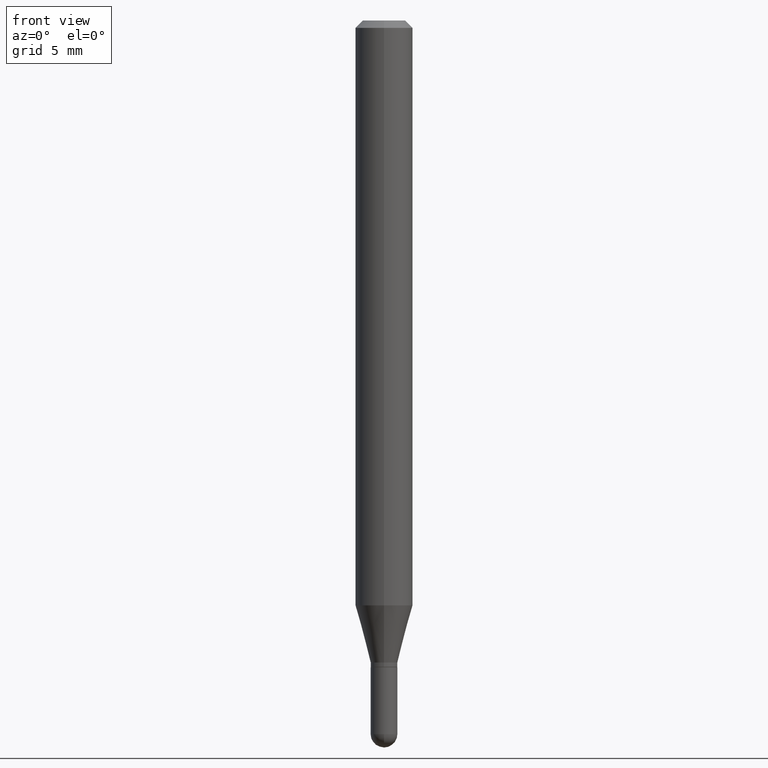
[diagram: clean part render]
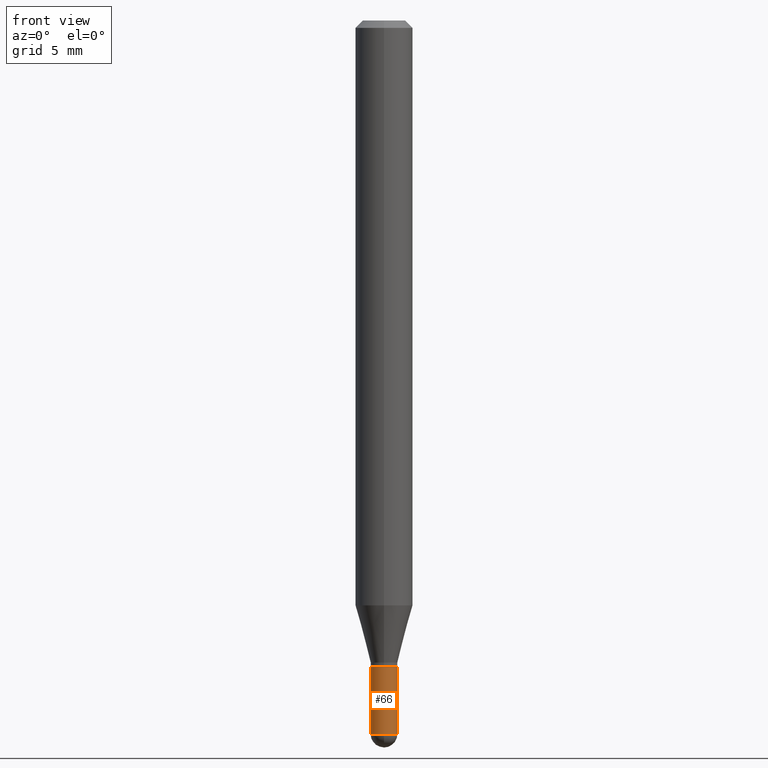
[diagram: same view with one face highlighted and labeled with its STEP entity id]
A machine part, front view. The second image highlights one B-rep face of the part: STEP entity #66.
In plain terms, the highlighted cylindrical surface (edge-blend (fillet) strip) has radius 0.6998 mm, axis along (-0, 0, 1).
Its self-contained STEP definition (entity closure, byte-faithful):
#3 = DIRECTION ( 'NONE',  ( -2.445468806185136597E-29, 3.491481338843145583E-15, 1.000000000000000000 ) ) ;
#6 = FACE_OUTER_BOUND ( 'NONE', #452, .T. ) ;
#11 = DIRECTION ( 'NONE',  ( -2.445468806185136597E-29, 3.491481338843145583E-15, 1.000000000000000000 ) ) ;
#12 = ORIENTED_EDGE ( 'NONE', *, *, #68, .F. ) ;
#15 = VERTEX_POINT ( 'NONE', #325 ) ;
#44 = DIRECTION ( 'NONE',  ( 1.000000000000000000, -6.982962677686254878E-15, 0.000000000000000000 ) ) ;
#57 = VECTOR ( 'NONE', #207, 39.37007874015748143 ) ;
#66 = ADVANCED_FACE ( 'NONE', ( #6 ), #195, .T. ) ;
#68 = EDGE_CURVE ( 'NONE', #125, #299, #323, .T. ) ;
#73 = AXIS2_PLACEMENT_3D ( 'NONE', #361, #11, #447 ) ;
#74 = EDGE_CURVE ( 'NONE', #299, #448, #466, .T. ) ;
#81 = CIRCLE ( 'NONE', #73, 0.02755000000000000851 ) ;
#90 = CARTESIAN_POINT ( 'NONE',  ( -1.923806217702209492E-16, -0.02755000000000515370, -1.468549999999999800 ) ) ;
#91 = ORIENTED_EDGE ( 'NONE', *, *, #124, .T. ) ;
#97 = ORIENTED_EDGE ( 'NONE', *, *, #283, .T. ) ;
#104 = DIRECTION ( 'NONE',  ( -2.445468806185136597E-29, 3.491481338843145583E-15, 1.000000000000000000 ) ) ;
#123 = DIRECTION ( 'NONE',  ( 1.000000000000000000, -6.982962677686256455E-15, 0.000000000000000000 ) ) ;
#124 = EDGE_CURVE ( 'NONE', #125, #289, #208, .T. ) ;
#125 = VERTEX_POINT ( 'NONE', #439 ) ;
#155 = DIRECTION ( 'NONE',  ( 1.000000000000000000, -6.982962677686265922E-15, 4.876176775795935793E-29 ) ) ;
#158 = CARTESIAN_POINT ( 'NONE',  ( 3.254185340390560677E-29, -4.646114217598572614E-15, -1.330699999999999772 ) ) ;
#195 = CYLINDRICAL_SURFACE ( 'NONE', #436, 0.02755000000000000851 ) ;
#207 = DIRECTION ( 'NONE',  ( -2.445468806185136877E-29, 3.491481338843145188E-15, 1.000000000000000000 ) ) ;
#208 = CIRCLE ( 'NONE', #503, 0.02755000000000000851 ) ;
#228 = AXIS2_PLACEMENT_3D ( 'NONE', #158, #401, #123 ) ;
#231 = VECTOR ( 'NONE', #275, 39.37007874015748143 ) ;
#248 = LINE ( 'NONE', #409, #57 ) ;
#252 = ORIENTED_EDGE ( 'NONE', *, *, #74, .F. ) ;
#268 = CARTESIAN_POINT ( 'NONE',  ( 0.02755000000000000157, -4.838494839368829407E-15, -1.330699999999999772 ) ) ;
#275 = DIRECTION ( 'NONE',  ( -2.445468806185136877E-29, 3.491481338843145188E-15, 1.000000000000000000 ) ) ;
#283 = EDGE_CURVE ( 'NONE', #289, #15, #81, .T. ) ;
#289 = VERTEX_POINT ( 'NONE', #90 ) ;
#299 = VERTEX_POINT ( 'NONE', #451 ) ;
#319 = CARTESIAN_POINT ( 'NONE',  ( -0.02755000000000000851, 1.957545237019076617E-16, -1.355166617365226740E-30 ) ) ;
#323 = LINE ( 'NONE', #319, #231 ) ;
#325 = CARTESIAN_POINT ( 'NONE',  ( 0.02755000000000000851, -5.079145190648592548E-15, -1.468549999999999800 ) ) ;
#334 = EDGE_CURVE ( 'NONE', #15, #448, #248, .T. ) ;
#354 = CARTESIAN_POINT ( 'NONE',  ( 0.000000000000000000, 0.000000000000000000, 0.000000000000000000 ) ) ;
#361 = CARTESIAN_POINT ( 'NONE',  ( 3.591293215323181808E-29, -5.127414920158100475E-15, -1.468549999999999800 ) ) ;
#362 = ORIENTED_EDGE ( 'NONE', *, *, #334, .T. ) ;
#401 = DIRECTION ( 'NONE',  ( -2.445468806185136597E-29, 3.491481338843145583E-15, 1.000000000000000000 ) ) ;
#409 = CARTESIAN_POINT ( 'NONE',  ( 0.02755000000000000851, -1.923806217702566944E-16, 1.343386701731780684E-30 ) ) ;
#436 = AXIS2_PLACEMENT_3D ( 'NONE', #354, #3, #155 ) ;
#439 = CARTESIAN_POINT ( 'NONE',  ( -0.02755000000000000851, -4.691010045176429992E-15, -1.468549999999999800 ) ) ;
#447 = DIRECTION ( 'NONE',  ( 1.000000000000000000, -6.982962677686254878E-15, 0.000000000000000000 ) ) ;
#448 = VERTEX_POINT ( 'NONE', #268 ) ;
#451 = CARTESIAN_POINT ( 'NONE',  ( -0.02755000000000000157, -4.691010045176429992E-15, -1.330699999999999772 ) ) ;
#452 = EDGE_LOOP ( 'NONE', ( #12, #91, #97, #362, #252 ) ) ;
#466 = CIRCLE ( 'NONE', #228, 0.02755000000000000157 ) ;
#468 = CARTESIAN_POINT ( 'NONE',  ( 3.591293215323181808E-29, -5.127414920158100475E-15, -1.468549999999999800 ) ) ;
#503 = AXIS2_PLACEMENT_3D ( 'NONE', #468, #104, #44 ) ;